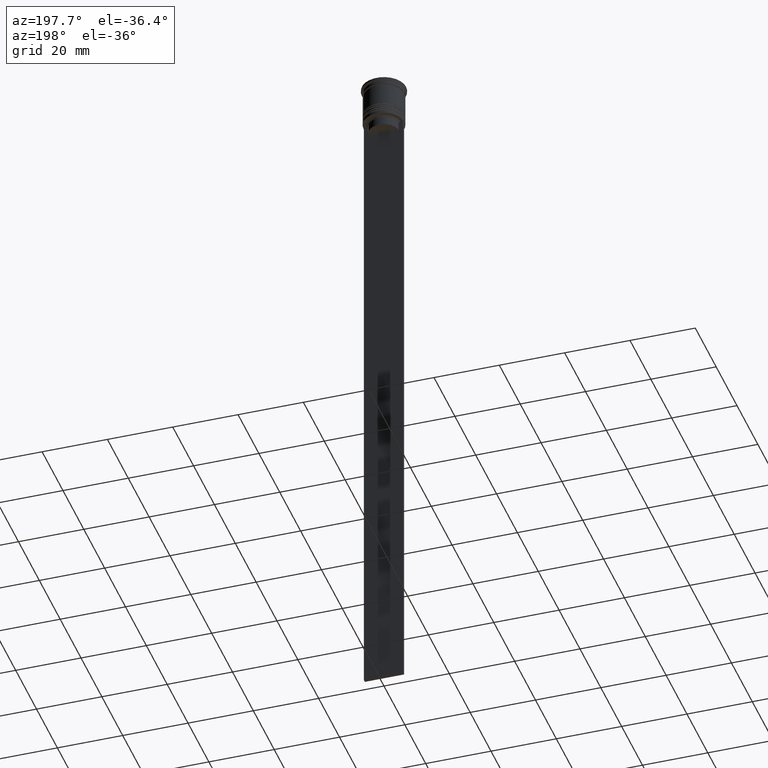
[diagram: clean part render]
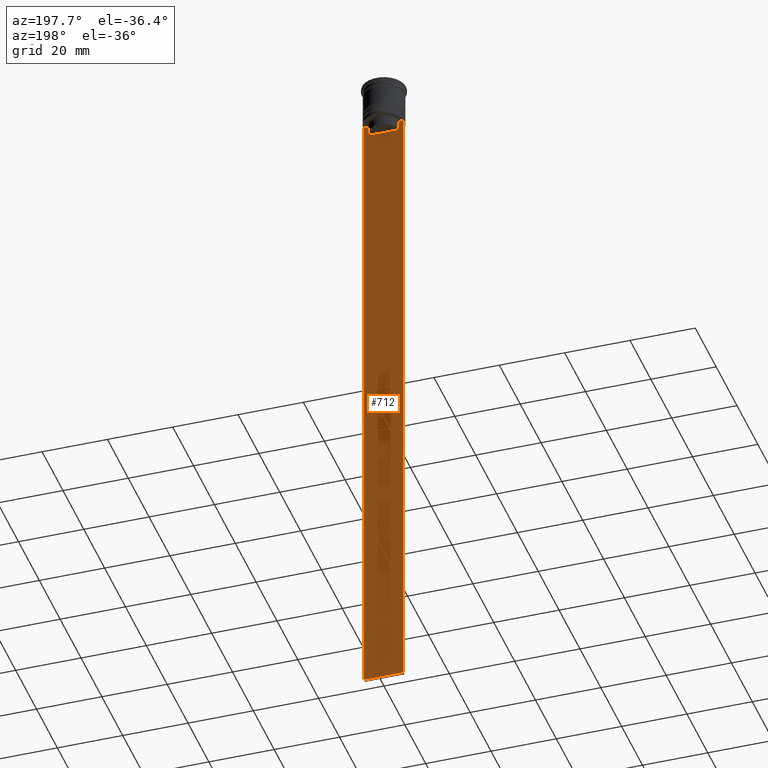
[diagram: same view with one face highlighted and labeled with its STEP entity id]
A machine part, auxiliary view. The second image highlights one B-rep face of the part: STEP entity #712.
In plain terms, the highlighted planar face has unit normal (0, -1, -0).
Its self-contained STEP definition (entity closure, byte-faithful):
#37 = DIRECTION ( 'NONE',  ( 0.000000000000000000, 0.000000000000000000, -1.000000000000000000 ) ) ;
#62 = VERTEX_POINT ( 'NONE', #1615 ) ;
#69 = CARTESIAN_POINT ( 'NONE',  ( 4.623040125285526436, 0.4999999999999987232, -15.50000000000000000 ) ) ;
#79 = LINE ( 'NONE', #639, #1301 ) ;
#88 = CARTESIAN_POINT ( 'NONE',  ( -5.125670687822231564, 0.4999999999999982792, -12.50000000000000000 ) ) ;
#105 = ORIENTED_EDGE ( 'NONE', *, *, #535, .T. ) ;
#150 = DIRECTION ( 'NONE',  ( 1.000000000000000000, 0.000000000000000000, 0.000000000000000000 ) ) ;
#171 = ORIENTED_EDGE ( 'NONE', *, *, #2032, .T. ) ;
#217 = CARTESIAN_POINT ( 'NONE',  ( -5.125670687822231564, 0.4999999999999982792, -12.50000000000000000 ) ) ;
#239 = CARTESIAN_POINT ( 'NONE',  ( -4.958169823806762189, 0.4999999999999982792, -12.66670956677067750 ) ) ;
#310 = ORIENTED_EDGE ( 'NONE', *, *, #901, .T. ) ;
#326 = VECTOR ( 'NONE', #150, 1000.000000000000000 ) ;
#335 = VECTOR ( 'NONE', #430, 1000.000000000000000 ) ;
#430 = DIRECTION ( 'NONE',  ( 1.000000000000000000, 0.000000000000000000, 0.000000000000000000 ) ) ;
#472 = VERTEX_POINT ( 'NONE', #1686 ) ;
#473 = VERTEX_POINT ( 'NONE', #69 ) ;
#486 = ORIENTED_EDGE ( 'NONE', *, *, #1272, .T. ) ;
#493 = ORIENTED_EDGE ( 'NONE', *, *, #601, .T. ) ;
#501 = ORIENTED_EDGE ( 'NONE', *, *, #2193, .T. ) ;
#535 = EDGE_CURVE ( 'NONE', #644, #2155, #79, .T. ) ;
#572 = CARTESIAN_POINT ( 'NONE',  ( 4.623040125285526436, 0.4999999999999982792, -13.00000000000000178 ) ) ;
#594 = LINE ( 'NONE', #1312, #1835 ) ;
#596 = EDGE_CURVE ( 'NONE', #1917, #2155, #1891, .T. ) ;
#598 = DIRECTION ( 'NONE',  ( 0.000000000000000000, -1.000000000000000000, -0.000000000000000000 ) ) ;
#601 = EDGE_CURVE ( 'NONE', #1874, #472, #1523, .T. ) ;
#621 = CARTESIAN_POINT ( 'NONE',  ( 6.000000000000016875, 0.4999999999999982792, -12.50000000000000000 ) ) ;
#623 = CARTESIAN_POINT ( 'NONE',  ( -5.999999999999983125, 0.4999999999999982792, -0.4584054212077061097 ) ) ;
#639 = CARTESIAN_POINT ( 'NONE',  ( 6.000000000000016875, 0.4999999999999982792, -212.5000000000000284 ) ) ;
#644 = VERTEX_POINT ( 'NONE', #1326 ) ;
#712 = ADVANCED_FACE ( 'NONE', ( #2082 ), #2212, .F. ) ;
#761 = EDGE_LOOP ( 'NONE', ( #486, #493, #1826, #310, #501, #900, #2210, #171, #105, #2052 ) ) ;
#795 = LINE ( 'NONE', #2234, #972 ) ;
#831 = CARTESIAN_POINT ( 'NONE',  ( 5.125670687822231564, 0.4999999999999982792, -12.50000000000000000 ) ) ;
#863 = LINE ( 'NONE', #2337, #326 ) ;
#900 = ORIENTED_EDGE ( 'NONE', *, *, #2227, .T. ) ;
#901 = EDGE_CURVE ( 'NONE', #1229, #473, #1116, .T. ) ;
#903 = DIRECTION ( 'NONE',  ( -0.000000000000000000, -0.000000000000000000, 1.000000000000000000 ) ) ;
#948 = CARTESIAN_POINT ( 'NONE',  ( -4.623040125285526436, 0.4999999999999982792, -13.00000000000000178 ) ) ;
#963 = CARTESIAN_POINT ( 'NONE',  ( -5.999999999999983125, 0.4999999999999985012, -12.50000000000000000 ) ) ;
#972 = VECTOR ( 'NONE', #1477, 1000.000000000000000 ) ;
#979 = DIRECTION ( 'NONE',  ( 0.000000000000000000, 0.000000000000000000, -1.000000000000000000 ) ) ;
#988 = CARTESIAN_POINT ( 'NONE',  ( 4.623040125285526436, 0.4999999999999982792, -13.00000000000000178 ) ) ;
#1116 = LINE ( 'NONE', #1475, #1191 ) ;
#1127 = DIRECTION ( 'NONE',  ( 1.000000000000000000, 0.000000000000000000, 0.000000000000000000 ) ) ;
#1144 = CARTESIAN_POINT ( 'NONE',  ( 4.958169719475987058, 0.4999999999999982792, -12.66670967060858111 ) ) ;
#1155 = VECTOR ( 'NONE', #2063, 1000.000000000000000 ) ;
#1173 = DIRECTION ( 'NONE',  ( -1.000000000000000000, 0.000000000000000000, 0.000000000000000000 ) ) ;
#1191 = VECTOR ( 'NONE', #1127, 1000.000000000000000 ) ;
#1212 = VERTEX_POINT ( 'NONE', #1907 ) ;
#1229 = VERTEX_POINT ( 'NONE', #1394 ) ;
#1272 = EDGE_CURVE ( 'NONE', #1917, #1874, #863, .T. ) ;
#1273 = CARTESIAN_POINT ( 'NONE',  ( -5.999999999999983125, 0.4999999999999982792, -212.5000000000000284 ) ) ;
#1301 = VECTOR ( 'NONE', #1173, 1000.000000000000000 ) ;
#1312 = CARTESIAN_POINT ( 'NONE',  ( 4.623040125285526436, 0.4999999999999982792, 0.000000000000000000 ) ) ;
#1316 = LINE ( 'NONE', #1481, #1880 ) ;
#1324 = LINE ( 'NONE', #621, #335 ) ;
#1326 = CARTESIAN_POINT ( 'NONE',  ( 6.000000000000016875, 0.4999999999999982792, -212.5000000000000284 ) ) ;
#1394 = CARTESIAN_POINT ( 'NONE',  ( -4.623040125285526436, 0.4999999999999987232, -15.50000000000000000 ) ) ;
#1475 = CARTESIAN_POINT ( 'NONE',  ( 0.000000000000000000, 0.4999999999999987232, -15.50000000000000000 ) ) ;
#1477 = DIRECTION ( 'NONE',  ( 0.000000000000000000, 0.000000000000000000, -1.000000000000000000 ) ) ;
#1481 = CARTESIAN_POINT ( 'NONE',  ( -4.623040125285526436, 0.4999999999999982792, 0.000000000000000000 ) ) ;
#1523 = B_SPLINE_CURVE_WITH_KNOTS ( 'NONE', 3,
 ( #88, #239, #2237, #948 ),
 .UNSPECIFIED., .F., .F.,
 ( 4, 4 ),
 ( 0.008759809102772707357, 0.009468778395565351919 ),
 .UNSPECIFIED. ) ;
#1615 = CARTESIAN_POINT ( 'NONE',  ( 6.000000000000016875, 0.4999999999999982792, -12.50000000000000000 ) ) ;
#1686 = CARTESIAN_POINT ( 'NONE',  ( -4.623040125285526436, 0.4999999999999982792, -13.00000000000000178 ) ) ;
#1718 = CARTESIAN_POINT ( 'NONE',  ( 4.790630799407576745, 0.4999999999999982792, -12.83338098686239093 ) ) ;
#1826 = ORIENTED_EDGE ( 'NONE', *, *, #1865, .T. ) ;
#1835 = VECTOR ( 'NONE', #903, 1000.000000000000000 ) ;
#1865 = EDGE_CURVE ( 'NONE', #472, #1229, #1316, .T. ) ;
#1874 = VERTEX_POINT ( 'NONE', #217 ) ;
#1875 = CARTESIAN_POINT ( 'NONE',  ( 6.000000000000016875, 0.4999999999999982792, -0.4584054212077061097 ) ) ;
#1880 = VECTOR ( 'NONE', #37, 1000.000000000000000 ) ;
#1881 = AXIS2_PLACEMENT_3D ( 'NONE', #1875, #598, #979 ) ;
#1891 = LINE ( 'NONE', #623, #1155 ) ;
#1894 = VERTEX_POINT ( 'NONE', #572 ) ;
#1907 = CARTESIAN_POINT ( 'NONE',  ( 5.125670687822231564, 0.4999999999999982792, -12.50000000000000000 ) ) ;
#1917 = VERTEX_POINT ( 'NONE', #963 ) ;
#2032 = EDGE_CURVE ( 'NONE', #62, #644, #795, .T. ) ;
#2052 = ORIENTED_EDGE ( 'NONE', *, *, #596, .F. ) ;
#2063 = DIRECTION ( 'NONE',  ( 0.000000000000000000, 0.000000000000000000, -1.000000000000000000 ) ) ;
#2082 = FACE_OUTER_BOUND ( 'NONE', #761, .T. ) ;
#2155 = VERTEX_POINT ( 'NONE', #1273 ) ;
#2193 = EDGE_CURVE ( 'NONE', #473, #1894, #594, .T. ) ;
#2210 = ORIENTED_EDGE ( 'NONE', *, *, #2316, .T. ) ;
#2212 = PLANE ( 'NONE',  #1881 ) ;
#2227 = EDGE_CURVE ( 'NONE', #1894, #1212, #2330, .T. ) ;
#2234 = CARTESIAN_POINT ( 'NONE',  ( 6.000000000000016875, 0.4999999999999982792, -0.4584054212077061097 ) ) ;
#2237 = CARTESIAN_POINT ( 'NONE',  ( -4.790630915080666519, 0.4999999999999982792, -12.83338087185995313 ) ) ;
#2316 = EDGE_CURVE ( 'NONE', #1212, #62, #1324, .T. ) ;
#2330 = B_SPLINE_CURVE_WITH_KNOTS ( 'NONE', 3,
 ( #988, #1718, #1144, #831 ),
 .UNSPECIFIED., .F., .F.,
 ( 4, 4 ),
 ( 0.02203698174624552433, 0.02275222543365896036 ),
 .UNSPECIFIED. ) ;
#2337 = CARTESIAN_POINT ( 'NONE',  ( 6.000000000000016875, 0.4999999999999982792, -12.50000000000000000 ) ) ;